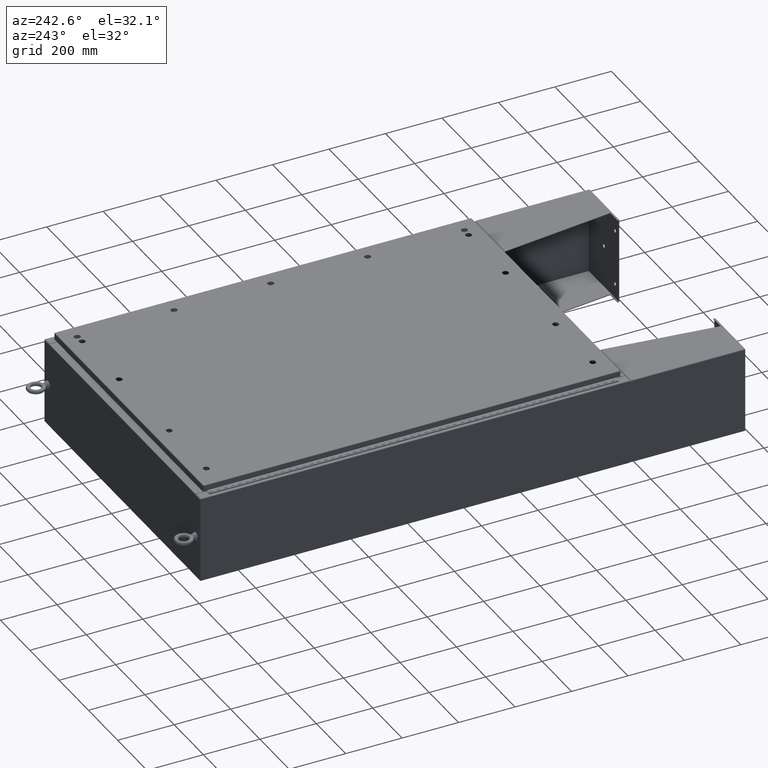
[diagram: clean part render]
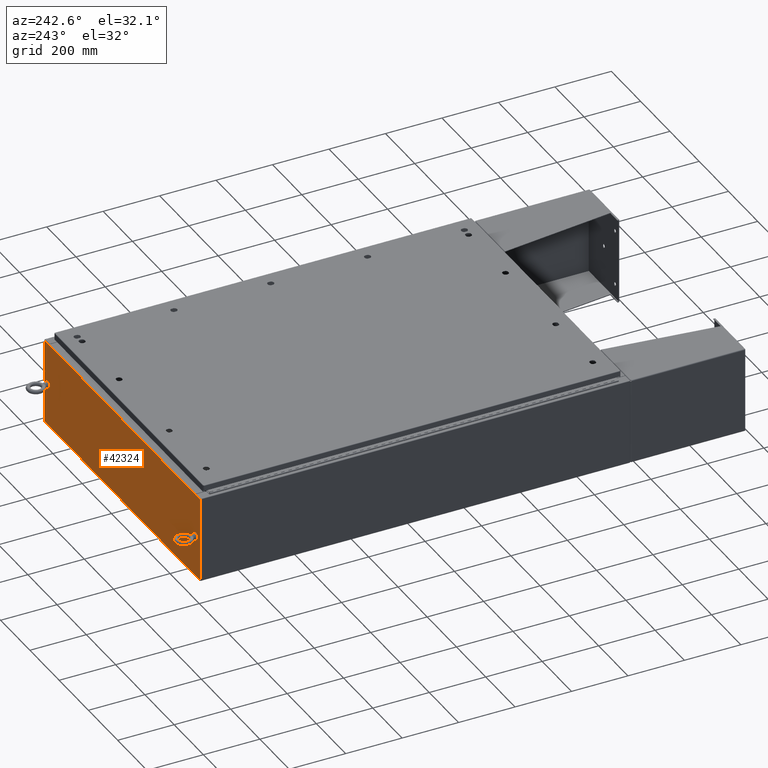
[diagram: same view with one face highlighted and labeled with its STEP entity id]
A machine part, auxiliary view. The second image highlights one B-rep face of the part: STEP entity #42324.
In plain terms, the highlighted planar face has unit normal (0, -1, 0).
Its self-contained STEP definition (entity closure, byte-faithful):
#89 = AXIS2_PLACEMENT_3D ( 'NONE', #16675, #27088, #37563 ) ;
#1256 = VERTEX_POINT ( 'NONE', #18466 ) ;
#1473 = EDGE_CURVE ( 'NONE', #18969, #31732, #63056, .T. ) ;
#1671 = DIRECTION ( 'NONE',  ( 0.0000000000000000000, 0.0000000000000000000, -1.000000000000000000 ) ) ;
#2345 = AXIS2_PLACEMENT_3D ( 'NONE', #31689, #55983, #41495 ) ;
#2540 = EDGE_CURVE ( 'NONE', #31369, #51284, #15756, .T. ) ;
#2613 = VERTEX_POINT ( 'NONE', #28365 ) ;
#3144 = EDGE_CURVE ( 'NONE', #1256, #28306, #59871, .T. ) ;
#3824 = AXIS2_PLACEMENT_3D ( 'NONE', #55699, #41218, #7279 ) ;
#4520 = EDGE_CURVE ( 'NONE', #31732, #16589, #43702, .T. ) ;
#4598 = DIRECTION ( 'NONE',  ( -1.000000000000000000, -0.0000000000000000000, -0.0000000000000000000 ) ) ;
#5870 = CARTESIAN_POINT ( 'NONE',  ( -19.65587500000000500, 0.0000000000000000000, 5.874950000000000100 ) ) ;
#6243 = DIRECTION ( 'NONE',  ( 0.0000000000000000000, 0.0000000000000000000, 1.000000000000000000 ) ) ;
#7279 = DIRECTION ( 'NONE',  ( 0.0000000000000000000, 0.0000000000000000000, 1.000000000000000000 ) ) ;
#8808 = LINE ( 'NONE', #61018, #33161 ) ;
#9124 = ORIENTED_EDGE ( 'NONE', *, *, #2540, .F. ) ;
#9210 = CARTESIAN_POINT ( 'NONE',  ( -19.88530000000000100, 0.0000000000000000000, 0.3750000000000007800 ) ) ;
#9671 = AXIS2_PLACEMENT_3D ( 'NONE', #61300, #61449, #61462 ) ;
#9733 = ORIENTED_EDGE ( 'NONE', *, *, #1473, .F. ) ;
#10736 = FACE_BOUND ( 'NONE', #24644, .T. ) ;
#10883 = EDGE_CURVE ( 'NONE', #56094, #38930, #48718, .T. ) ;
#12219 = ORIENTED_EDGE ( 'NONE', *, *, #3144, .F. ) ;
#12319 = DIRECTION ( 'NONE',  ( -0.0000000000000000000, -0.0000000000000000000, 1.000000000000000000 ) ) ;
#12549 = EDGE_LOOP ( 'NONE', ( #47396, #39729, #9733, #51984, #21435, #9124, #37697, #28742, #15563, #27375, #60826, #49064 ) ) ;
#13153 = DIRECTION ( 'NONE',  ( 0.0000000000000000000, 0.0000000000000000000, 1.000000000000000000 ) ) ;
#13247 = CARTESIAN_POINT ( 'NONE',  ( 20.92530000000000400, 0.0000000000000000000, 5.925300000000000000 ) ) ;
#13278 = DIRECTION ( 'NONE',  ( -0.0000000000000000000, 1.000000000000000000, -0.0000000000000000000 ) ) ;
#13364 = CARTESIAN_POINT ( 'NONE',  ( -19.63720000000000400, -7.171100983368691200E-016, 5.912300000000000100 ) ) ;
#13768 = CARTESIAN_POINT ( 'NONE',  ( 19.67455000000000400, 0.0000000000000000000, 5.874950000000000100 ) ) ;
#14146 = EDGE_CURVE ( 'NONE', #28306, #1256, #26557, .T. ) ;
#14206 = EDGE_CURVE ( 'NONE', #54175, #2613, #25026, .T. ) ;
#14377 = CARTESIAN_POINT ( 'NONE',  ( -20.92530000000000400, 0.0000000000000000000, -5.925300000000000000 ) ) ;
#14922 = CARTESIAN_POINT ( 'NONE',  ( 20.92530000000000400, 0.0000000000000000000, 5.925300000000000000 ) ) ;
#15363 = VECTOR ( 'NONE', #6243, 39.37007874015748100 ) ;
#15563 = ORIENTED_EDGE ( 'NONE', *, *, #10883, .T. ) ;
#15756 = CIRCLE ( 'NONE', #49288, 0.01867499999999949400 ) ;
#16589 = VERTEX_POINT ( 'NONE', #59505 ) ;
#16675 = CARTESIAN_POINT ( 'NONE',  ( -19.88530000000000100, 0.0000000000000000000, -5.656012487845070000E-017 ) ) ;
#17003 = CIRCLE ( 'NONE', #55881, 0.3750000000000008300 ) ;
#17004 = EDGE_CURVE ( 'NONE', #22828, #29142, #61327, .T. ) ;
#17633 = ORIENTED_EDGE ( 'NONE', *, *, #20064, .F. ) ;
#18466 = CARTESIAN_POINT ( 'NONE',  ( -19.88530000000000100, 0.0000000000000000000, -0.3750000000000009400 ) ) ;
#18666 = DIRECTION ( 'NONE',  ( 0.0000000000000000000, 0.0000000000000000000, 1.000000000000000000 ) ) ;
#18800 = VECTOR ( 'NONE', #4598, 39.37007874015748100 ) ;
#18939 = DIRECTION ( 'NONE',  ( -0.0000000000000000000, 1.000000000000000000, -0.0000000000000000000 ) ) ;
#18969 = VERTEX_POINT ( 'NONE', #13364 ) ;
#20064 = EDGE_CURVE ( 'NONE', #29142, #22828, #17003, .T. ) ;
#21435 = ORIENTED_EDGE ( 'NONE', *, *, #36544, .F. ) ;
#22125 = CARTESIAN_POINT ( 'NONE',  ( 19.63720000000000400, 0.0000000000000000000, 5.874950000000000100 ) ) ;
#22645 = CARTESIAN_POINT ( 'NONE',  ( 19.67455000000076700, 0.0000000000000000000, 2.561964485898667500E-012 ) ) ;
#22828 = VERTEX_POINT ( 'NONE', #52428 ) ;
#23826 = CARTESIAN_POINT ( 'NONE',  ( -19.63720000000000400, -7.171100983368691200E-016, 5.912300000000000100 ) ) ;
#24644 = EDGE_LOOP ( 'NONE', ( #41698, #12219 ) ) ;
#24649 = CARTESIAN_POINT ( 'NONE',  ( 20.92530000000000400, 0.0000000000000000000, -5.925300000000000000 ) ) ;
#25026 = LINE ( 'NONE', #53794, #36478 ) ;
#25263 = EDGE_LOOP ( 'NONE', ( #17633, #54332 ) ) ;
#25497 = CARTESIAN_POINT ( 'NONE',  ( 19.88530000000000100, 0.0000000000000000000, 0.3750000000000008300 ) ) ;
#26557 = CIRCLE ( 'NONE', #3824, 0.3750000000000008300 ) ;
#27088 = DIRECTION ( 'NONE',  ( 0.0000000000000000000, 1.000000000000000000, 0.0000000000000000000 ) ) ;
#27375 = ORIENTED_EDGE ( 'NONE', *, *, #55744, .T. ) ;
#27382 = DIRECTION ( 'NONE',  ( 0.0000000000000000000, 0.0000000000000000000, -1.000000000000000000 ) ) ;
#28306 = VERTEX_POINT ( 'NONE', #9210 ) ;
#28365 = CARTESIAN_POINT ( 'NONE',  ( -19.67455000000000400, 0.0000000000000000000, 5.925300000000000000 ) ) ;
#28491 = CARTESIAN_POINT ( 'NONE',  ( 19.63720000000000400, 0.0000000000000000000, 0.0000000000000000000 ) ) ;
#28739 = DIRECTION ( 'NONE',  ( 1.000000000000000000, 0.0000000000000000000, 0.0000000000000000000 ) ) ;
#28742 = ORIENTED_EDGE ( 'NONE', *, *, #60038, .T. ) ;
#29142 = VERTEX_POINT ( 'NONE', #25497 ) ;
#30005 = EDGE_CURVE ( 'NONE', #18969, #50487, #38672, .T. ) ;
#30658 = VECTOR ( 'NONE', #51618, 39.37007874015748100 ) ;
#30952 = CARTESIAN_POINT ( 'NONE',  ( -19.63720000000000400, -0.0000000000000000000, 5.874950000000000100 ) ) ;
#31369 = VERTEX_POINT ( 'NONE', #13768 ) ;
#31689 = CARTESIAN_POINT ( 'NONE',  ( 0.0000000000000000000, 0.0000000000000000000, 0.0000000000000000000 ) ) ;
#31732 = VERTEX_POINT ( 'NONE', #30952 ) ;
#33124 = DIRECTION ( 'NONE',  ( 0.0000000000000000000, 0.0000000000000000000, -1.000000000000000000 ) ) ;
#33161 = VECTOR ( 'NONE', #56137, 39.37007874015748100 ) ;
#33403 = LINE ( 'NONE', #60855, #43332 ) ;
#35382 = CARTESIAN_POINT ( 'NONE',  ( -19.67455000000000400, -0.0000000000000000000, 0.0000000000000000000 ) ) ;
#35778 = VECTOR ( 'NONE', #44606, 39.37007874015748100 ) ;
#36478 = VECTOR ( 'NONE', #58585, 39.37007874015748100 ) ;
#36544 = EDGE_CURVE ( 'NONE', #51284, #50487, #48827, .T. ) ;
#36622 = PLANE ( 'NONE',  #2345 ) ;
#37168 = VECTOR ( 'NONE', #1671, 39.37007874015748100 ) ;
#37408 = VECTOR ( 'NONE', #18666, 39.37007874015748100 ) ;
#37563 = DIRECTION ( 'NONE',  ( 0.0000000000000000000, 0.0000000000000000000, 1.000000000000000000 ) ) ;
#37697 = ORIENTED_EDGE ( 'NONE', *, *, #57285, .F. ) ;
#38158 = FACE_OUTER_BOUND ( 'NONE', #12549, .T. ) ;
#38672 = LINE ( 'NONE', #23826, #50098 ) ;
#38930 = VERTEX_POINT ( 'NONE', #24649 ) ;
#39729 = ORIENTED_EDGE ( 'NONE', *, *, #4520, .F. ) ;
#41068 = CARTESIAN_POINT ( 'NONE',  ( -20.92530000000000400, 0.0000000000000000000, -5.925300000000000000 ) ) ;
#41218 = DIRECTION ( 'NONE',  ( 0.0000000000000000000, 1.000000000000000000, 0.0000000000000000000 ) ) ;
#41281 = LINE ( 'NONE', #35382, #15363 ) ;
#41495 = DIRECTION ( 'NONE',  ( 0.0000000000000000000, -0.0000000000000000000, -1.000000000000000000 ) ) ;
#41698 = ORIENTED_EDGE ( 'NONE', *, *, #14146, .F. ) ;
#41762 = EDGE_CURVE ( 'NONE', #16589, #2613, #41281, .T. ) ;
#42324 = ADVANCED_FACE ( 'NONE', ( #49588, #10736, #38158 ), #36622, .F. ) ;
#42555 = VERTEX_POINT ( 'NONE', #41068 ) ;
#43332 = VECTOR ( 'NONE', #12319, 39.37007874015748100 ) ;
#43702 = CIRCLE ( 'NONE', #43714, 0.01867499999999949400 ) ;
#43714 = AXIS2_PLACEMENT_3D ( 'NONE', #5870, #13278, #33124 ) ;
#43904 = CARTESIAN_POINT ( 'NONE',  ( 19.67454999999998200, 0.0000000000000000000, 5.925300000000000000 ) ) ;
#44606 = DIRECTION ( 'NONE',  ( 0.0000000000000000000, 0.0000000000000000000, -1.000000000000000000 ) ) ;
#46886 = DIRECTION ( 'NONE',  ( 0.0000000000000000000, 1.000000000000000000, 0.0000000000000000000 ) ) ;
#47396 = ORIENTED_EDGE ( 'NONE', *, *, #41762, .F. ) ;
#48718 = LINE ( 'NONE', #14922, #35778 ) ;
#48827 = LINE ( 'NONE', #28491, #37408 ) ;
#49064 = ORIENTED_EDGE ( 'NONE', *, *, #14206, .T. ) ;
#49288 = AXIS2_PLACEMENT_3D ( 'NONE', #51521, #18939, #27382 ) ;
#49588 = FACE_BOUND ( 'NONE', #25263, .T. ) ;
#50098 = VECTOR ( 'NONE', #28739, 39.37007874015748100 ) ;
#50487 = VERTEX_POINT ( 'NONE', #59910 ) ;
#50952 = VERTEX_POINT ( 'NONE', #43904 ) ;
#51284 = VERTEX_POINT ( 'NONE', #22125 ) ;
#51521 = CARTESIAN_POINT ( 'NONE',  ( 19.65587500000000500, 0.0000000000000000000, 5.874950000000000100 ) ) ;
#51618 = DIRECTION ( 'NONE',  ( 1.302171834120001500E-013, 0.0000000000000000000, -1.000000000000000000 ) ) ;
#51984 = ORIENTED_EDGE ( 'NONE', *, *, #30005, .T. ) ;
#52428 = CARTESIAN_POINT ( 'NONE',  ( 19.88530000000000100, 0.0000000000000000000, -0.3750000000000008300 ) ) ;
#53794 = CARTESIAN_POINT ( 'NONE',  ( -20.92530000000000400, 0.0000000000000000000, 5.925300000000000000 ) ) ;
#54175 = VERTEX_POINT ( 'NONE', #56147 ) ;
#54332 = ORIENTED_EDGE ( 'NONE', *, *, #17004, .F. ) ;
#55699 = CARTESIAN_POINT ( 'NONE',  ( -19.88530000000000100, 0.0000000000000000000, -5.656012487845070000E-017 ) ) ;
#55744 = EDGE_CURVE ( 'NONE', #38930, #42555, #59171, .T. ) ;
#55881 = AXIS2_PLACEMENT_3D ( 'NONE', #59145, #46886, #13153 ) ;
#55983 = DIRECTION ( 'NONE',  ( 0.0000000000000000000, -1.000000000000000000, 0.0000000000000000000 ) ) ;
#56088 = CARTESIAN_POINT ( 'NONE',  ( -19.63720000000000400, -0.0000000000000000000, 0.0000000000000000000 ) ) ;
#56094 = VERTEX_POINT ( 'NONE', #13247 ) ;
#56137 = DIRECTION ( 'NONE',  ( 1.000000000000000000, 0.0000000000000000000, 0.0000000000000000000 ) ) ;
#56147 = CARTESIAN_POINT ( 'NONE',  ( -20.92530000000000400, 0.0000000000000000000, 5.925300000000000000 ) ) ;
#56588 = LINE ( 'NONE', #22645, #30658 ) ;
#57285 = EDGE_CURVE ( 'NONE', #50952, #31369, #56588, .T. ) ;
#58585 = DIRECTION ( 'NONE',  ( 1.000000000000000000, 0.0000000000000000000, 0.0000000000000000000 ) ) ;
#59145 = CARTESIAN_POINT ( 'NONE',  ( 19.88530000000000100, 0.0000000000000000000, 0.0000000000000000000 ) ) ;
#59171 = LINE ( 'NONE', #14377, #18800 ) ;
#59505 = CARTESIAN_POINT ( 'NONE',  ( -19.67455000000000400, 0.0000000000000000000, 5.874950000000000100 ) ) ;
#59526 = EDGE_CURVE ( 'NONE', #42555, #54175, #33403, .T. ) ;
#59871 = CIRCLE ( 'NONE', #89, 0.3750000000000008300 ) ;
#59910 = CARTESIAN_POINT ( 'NONE',  ( 19.63720000000000400, 0.0000000000000000000, 5.912300000000000100 ) ) ;
#60038 = EDGE_CURVE ( 'NONE', #50952, #56094, #8808, .T. ) ;
#60826 = ORIENTED_EDGE ( 'NONE', *, *, #59526, .T. ) ;
#60855 = CARTESIAN_POINT ( 'NONE',  ( -20.92530000000000400, 0.0000000000000000000, 5.925300000000000000 ) ) ;
#61018 = CARTESIAN_POINT ( 'NONE',  ( -20.92530000000000400, 0.0000000000000000000, 5.925300000000000000 ) ) ;
#61300 = CARTESIAN_POINT ( 'NONE',  ( 19.88530000000000100, 0.0000000000000000000, 0.0000000000000000000 ) ) ;
#61327 = CIRCLE ( 'NONE', #9671, 0.3750000000000008300 ) ;
#61449 = DIRECTION ( 'NONE',  ( 0.0000000000000000000, 1.000000000000000000, 0.0000000000000000000 ) ) ;
#61462 = DIRECTION ( 'NONE',  ( 0.0000000000000000000, 0.0000000000000000000, 1.000000000000000000 ) ) ;
#63056 = LINE ( 'NONE', #56088, #37168 ) ;